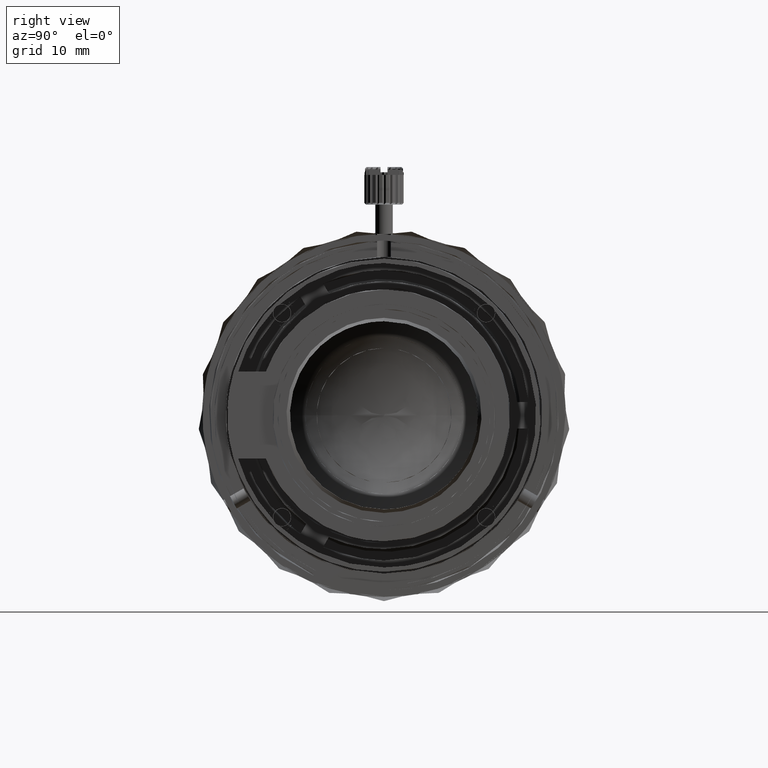
[diagram: clean part render]
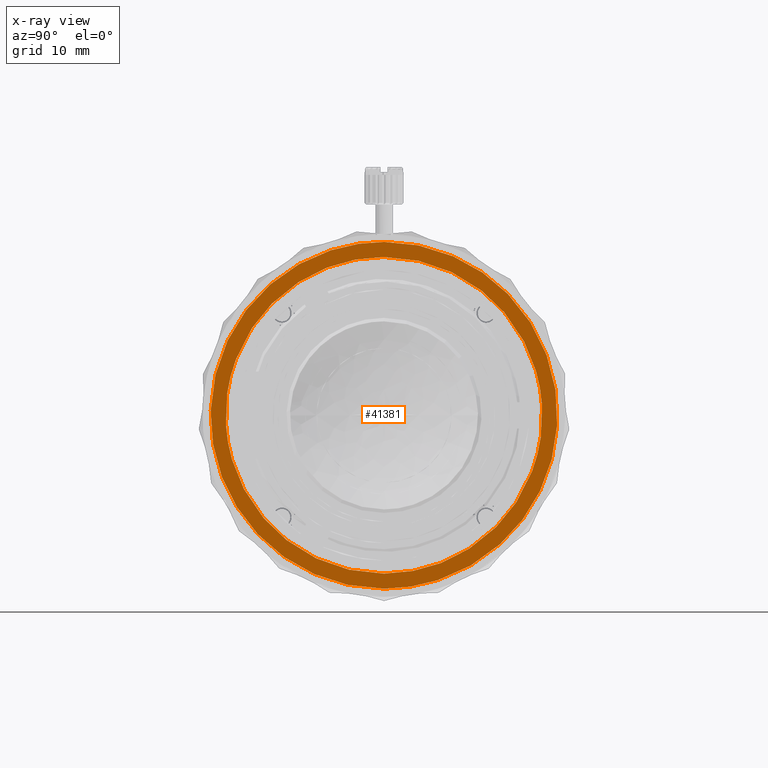
[diagram: x-ray — body ghosted, one internal face saturated and labeled with its STEP entity id]
A machine part, right view, then the same camera in x-ray: the body is ghosted and one INTERNAL B-rep face — a face not visible from any outside direction — is saturated and labeled: STEP entity #41381.
In plain terms, the highlighted face is a freeform B-spline surface patch.
Its self-contained STEP definition (entity closure, byte-faithful):
#815 = CARTESIAN_POINT ( 'NONE',  ( -14.48000000000000043, -1.186766586354032226E-09, 19.82499999672225144 ) ) ;
#956 = FACE_OUTER_BOUND ( 'NONE', #3022, .T. ) ;
#2009 = CARTESIAN_POINT ( 'NONE',  ( -14.48000000000000043, 20.06290000000000262, -20.06290000000000262 ) ) ;
#3022 = EDGE_LOOP ( 'NONE', ( #37788, #46072 ) ) ;
#3432 = CARTESIAN_POINT ( 'NONE',  ( -14.48000000000000753, -4.735876930460870327, 17.62963443851134926 ) ) ;
#6462 = CARTESIAN_POINT ( 'NONE',  ( -14.48000000000000043, -5.421567293755250312E-09, -19.82499999672225144 ) ) ;
#7506 = VERTEX_POINT ( 'NONE', #16449 ) ;
#10817 = ORIENTED_EDGE ( 'NONE', *, *, #25734, .T. ) ;
#11570 = B_SPLINE_SURFACE_WITH_KNOTS ( 'NONE', 1, 1, ( 
 ( #2009, #55394 ),
 ( #23572, #44461 ) ),
 .UNSPECIFIED., .F., .F., .F.,
 ( 2, 2 ),
 ( 2, 2 ),
 ( 0.0000000000000000000, 1.000000000000000000 ),
 ( 0.0000000000000000000, 1.000000000000000000 ),
 .UNSPECIFIED. ) ;
#12371 = CARTESIAN_POINT ( 'NONE',  ( -14.48000000000000220, 11.12194869272154385, 14.47531679781806702 ) ) ;
#14374 = CARTESIAN_POINT ( 'NONE',  ( -14.48000000000000753, -18.09999999370420554, 2.371189317106123351 ) ) ;
#16449 = CARTESIAN_POINT ( 'NONE',  ( -14.48000000000000043, -1.186766586354032226E-09, 19.82499999672225144 ) ) ;
#16735 = CARTESIAN_POINT ( 'NONE',  ( -14.47999999999999865, 11.61321611970964618, -19.82500000476381530 ) ) ;
#17696 = CARTESIAN_POINT ( 'NONE',  ( -14.48000000000000220, 9.117263323463530966, -15.81480463971027284 ) ) ;
#18381 = CARTESIAN_POINT ( 'NONE',  ( -14.48000000000000043, -1.083504424363579847E-09, -18.09999999790139924 ) ) ;
#18622 = B_SPLINE_CURVE_WITH_KNOTS ( 'NONE', 3,
 ( #19696, #41263, #51153, #62105, #56098, #56792, #61401, #62798, #23946, #14374, #29592, #40914, #29944, #57495, #61749, #3432, #62455, #45528 ),
 .UNSPECIFIED., .F., .F.,
 ( 4, 2, 2, 2, 2, 2, 2, 2, 4 ),
 ( 0.0000000000000000000, 0.3926990816987246946, 0.7853981633974491672, 1.178097245096173751, 1.570796326794898334, 1.963495408493622696, 2.356194490192347057, 2.748893571891071197, 3.141592653589795336 ),
 .UNSPECIFIED. ) ;
#18735 = CARTESIAN_POINT ( 'NONE',  ( -14.48000000000000043, 11.12194869272154385, -14.47531679781806169 ) ) ;
#19696 = CARTESIAN_POINT ( 'NONE',  ( -14.48000000000000043, -1.083504424363579847E-09, -18.09999999790139924 ) ) ;
#20620 =( BOUNDED_CURVE ( )  B_SPLINE_CURVE ( 3, ( #815, #38994, #54909, #37955, #66177, #16735, #6462 ),
 .UNSPECIFIED., .F., .F. ) 
 B_SPLINE_CURVE_WITH_KNOTS ( ( 4, 3, 4 ),
 ( -3.141592653589795336, -1.570796326794897668, 0.0000000000000000000 ),
 .UNSPECIFIED. ) 
 CURVE ( )  GEOMETRIC_REPRESENTATION_ITEM ( )  RATIONAL_B_SPLINE_CURVE ( ( 1.000000000000000000, 0.8047378540760217192, 0.8047378540760217192, 1.000000000000000000, 0.8047378540760217192, 0.8047378540760217192, 1.000000000000000000 ) ) 
 REPRESENTATION_ITEM ( '' )  );
#22794 = CARTESIAN_POINT ( 'NONE',  ( -14.48000000000000043, -5.421567293755250312E-09, -19.82499999672225144 ) ) ;
#23017 = CARTESIAN_POINT ( 'NONE',  ( -14.47999999999999332, 17.62963443851132794, 4.735876930460888090 ) ) ;
#23572 = CARTESIAN_POINT ( 'NONE',  ( -14.48000000000000043, -20.06290000000000262, -20.06290000000000262 ) ) ;
#23946 = CARTESIAN_POINT ( 'NONE',  ( -14.48000000000000220, -18.09999999370420198, -2.371189317106123795 ) ) ;
#25010 = EDGE_LOOP ( 'NONE', ( #45805, #10817 ) ) ;
#25734 = EDGE_CURVE ( 'NONE', #57524, #27687, #18622, .T. ) ;
#27687 = VERTEX_POINT ( 'NONE', #64787 ) ;
#28531 = FACE_BOUND ( 'NONE', #25010, .T. ) ;
#29592 = CARTESIAN_POINT ( 'NONE',  ( -14.48000000000000043, -17.62963443851131373, 4.735876930460917400 ) ) ;
#29681 = CARTESIAN_POINT ( 'NONE',  ( -14.48000000000000043, 9.117263323463543401, 15.81480463971026573 ) ) ;
#29944 = CARTESIAN_POINT ( 'NONE',  ( -14.48000000000000398, -14.47531679781806702, 11.12194869272155451 ) ) ;
#30579 = CARTESIAN_POINT ( 'NONE',  ( -14.48000000000000220, -39.64999998474705478, -19.82499998373531369 ) ) ;
#30924 =( BOUNDED_CURVE ( )  B_SPLINE_CURVE ( 3, ( #68388, #30579, #46876, #52851 ),
 .UNSPECIFIED., .F., .F. ) 
 B_SPLINE_CURVE_WITH_KNOTS ( ( 4, 4 ),
 ( -3.141592653589795336, 0.0000000000000000000 ),
 .UNSPECIFIED. ) 
 CURVE ( )  GEOMETRIC_REPRESENTATION_ITEM ( )  RATIONAL_B_SPLINE_CURVE ( ( 1.000000000000000000, 0.3333333335299309419, 0.3333333335299309419, 1.000000000000000000 ) ) 
 REPRESENTATION_ITEM ( '' )  );
#34987 = CARTESIAN_POINT ( 'NONE',  ( -14.48000000000000220, 4.735876930460857004, 17.62963443851133505 ) ) ;
#37073 = EDGE_CURVE ( 'NONE', #66685, #7506, #30924, .T. ) ;
#37788 = ORIENTED_EDGE ( 'NONE', *, *, #37073, .F. ) ;
#37949 = CARTESIAN_POINT ( 'NONE',  ( -14.47999999999999510, 4.735876930460867662, -17.62963443851133150 ) ) ;
#37955 = CARTESIAN_POINT ( 'NONE',  ( -14.48000000000000043, 19.82499999999999929, -4.066171068282147122E-09 ) ) ;
#38994 = CARTESIAN_POINT ( 'NONE',  ( -14.47999999999999865, 11.61321612784198898, 19.82500000000000284 ) ) ;
#40914 = CARTESIAN_POINT ( 'NONE',  ( -14.48000000000000220, -15.81480463971029060, 9.117263323463481228 ) ) ;
#41263 = CARTESIAN_POINT ( 'NONE',  ( -14.48000000000000043, -2.371189317106026984, -18.09999999370420554 ) ) ;
#41381 = ADVANCED_FACE ( 'NONE', ( #28531, #956 ), #11570, .F. ) ;
#43718 = EDGE_CURVE ( 'NONE', #7506, #66685, #20620, .T. ) ;
#44461 = CARTESIAN_POINT ( 'NONE',  ( -14.48000000000000043, -20.06290000000000262, 20.06290000000000262 ) ) ;
#45528 = CARTESIAN_POINT ( 'NONE',  ( -14.48000000000000043, -4.949829408169989987E-09, 18.09999999790139924 ) ) ;
#45621 = CARTESIAN_POINT ( 'NONE',  ( -14.47999999999999332, 18.09999999370420198, -2.371189317106122019 ) ) ;
#45805 = ORIENTED_EDGE ( 'NONE', *, *, #57639, .T. ) ;
#46072 = ORIENTED_EDGE ( 'NONE', *, *, #43718, .F. ) ;
#46876 = CARTESIAN_POINT ( 'NONE',  ( -14.48000000000000220, -39.64999998017501071, 19.82499999287939829 ) ) ;
#49866 = CARTESIAN_POINT ( 'NONE',  ( -14.48000000000000043, 14.47531679781805813, 11.12194869272153852 ) ) ;
#51153 = CARTESIAN_POINT ( 'NONE',  ( -14.47999999999999865, -4.735876930460862333, -17.62963443851133150 ) ) ;
#51247 = CARTESIAN_POINT ( 'NONE',  ( -14.48000000000000043, 2.371189317106133565, -18.09999999370420198 ) ) ;
#52851 = CARTESIAN_POINT ( 'NONE',  ( -14.48000000000000043, -1.186766586354032226E-09, 19.82499999672225144 ) ) ;
#54909 = CARTESIAN_POINT ( 'NONE',  ( -14.47999999999999865, 19.82500000238190552, 11.61321612377581758 ) ) ;
#55394 = CARTESIAN_POINT ( 'NONE',  ( -14.48000000000000043, 20.06290000000000262, 20.06290000000000262 ) ) ;
#55507 = CARTESIAN_POINT ( 'NONE',  ( -14.48000000000000043, -4.949829408169989987E-09, 18.09999999790139924 ) ) ;
#56098 = CARTESIAN_POINT ( 'NONE',  ( -14.48000000000000220, -11.12194869272155096, -14.47531679781806346 ) ) ;
#56189 = CARTESIAN_POINT ( 'NONE',  ( -14.48000000000000043, 18.09999999370420554, 2.371189317106122907 ) ) ;
#56537 = CARTESIAN_POINT ( 'NONE',  ( -14.48000000000000220, 15.81480463971029060, -9.117263323463490110 ) ) ;
#56792 = CARTESIAN_POINT ( 'NONE',  ( -14.47999999999999865, -14.47531679781806169, -11.12194869272154563 ) ) ;
#57495 = CARTESIAN_POINT ( 'NONE',  ( -14.47999999999999865, -11.12194869272153852, 14.47531679781804925 ) ) ;
#57524 = VERTEX_POINT ( 'NONE', #68709 ) ;
#57639 = EDGE_CURVE ( 'NONE', #27687, #57524, #63524, .T. ) ;
#60790 = CARTESIAN_POINT ( 'NONE',  ( -14.48000000000000043, 2.371189317106027872, 18.09999999370419843 ) ) ;
#61401 = CARTESIAN_POINT ( 'NONE',  ( -14.48000000000000220, -15.81480463971026929, -9.117263323463514979 ) ) ;
#61749 = CARTESIAN_POINT ( 'NONE',  ( -14.48000000000000220, -9.117263323463532743, 15.81480463971025863 ) ) ;
#62105 = CARTESIAN_POINT ( 'NONE',  ( -14.48000000000000043, -9.117263323463534519, -15.81480463971026573 ) ) ;
#62455 = CARTESIAN_POINT ( 'NONE',  ( -14.48000000000000576, -2.371189317106131345, 18.09999999370420909 ) ) ;
#62798 = CARTESIAN_POINT ( 'NONE',  ( -14.48000000000000220, -17.62963443851133860, -4.735876930460888978 ) ) ;
#63524 = B_SPLINE_CURVE_WITH_KNOTS ( 'NONE', 3,
 ( #55507, #60790, #34987, #29681, #12371, #49866, #64797, #23017, #56189, #45621, #67139, #56537, #66093, #18735, #17696, #37949, #51247, #18381 ),
 .UNSPECIFIED., .F., .F.,
 ( 4, 2, 2, 2, 2, 2, 2, 2, 4 ),
 ( 0.0000000000000000000, 0.3926990816987244171, 0.7853981633974488341, 1.178097245096173307, 1.570796326794897668, 1.963495408493622030, 2.356194490192346613, 2.748893571891070753, 3.141592653589795336 ),
 .UNSPECIFIED. ) ;
#64787 = CARTESIAN_POINT ( 'NONE',  ( -14.48000000000000043, -4.949829408169989987E-09, 18.09999999790139924 ) ) ;
#64797 = CARTESIAN_POINT ( 'NONE',  ( -14.48000000000000043, 15.81480463971027994, 9.117263323463514979 ) ) ;
#66093 = CARTESIAN_POINT ( 'NONE',  ( -14.48000000000000220, 14.47531679781805991, -11.12194869272154563 ) ) ;
#66177 = CARTESIAN_POINT ( 'NONE',  ( -14.47999999999999865, 19.82499999761808951, -11.61321613190816038 ) ) ;
#66685 = VERTEX_POINT ( 'NONE', #22794 ) ;
#67139 = CARTESIAN_POINT ( 'NONE',  ( -14.48000000000000220, 17.62963443851131373, -4.735876930460910295 ) ) ;
#68388 = CARTESIAN_POINT ( 'NONE',  ( -14.48000000000000043, -5.421567293755250312E-09, -19.82499999672225144 ) ) ;
#68709 = CARTESIAN_POINT ( 'NONE',  ( -14.48000000000000043, -1.083504424363579847E-09, -18.09999999790139924 ) ) ;